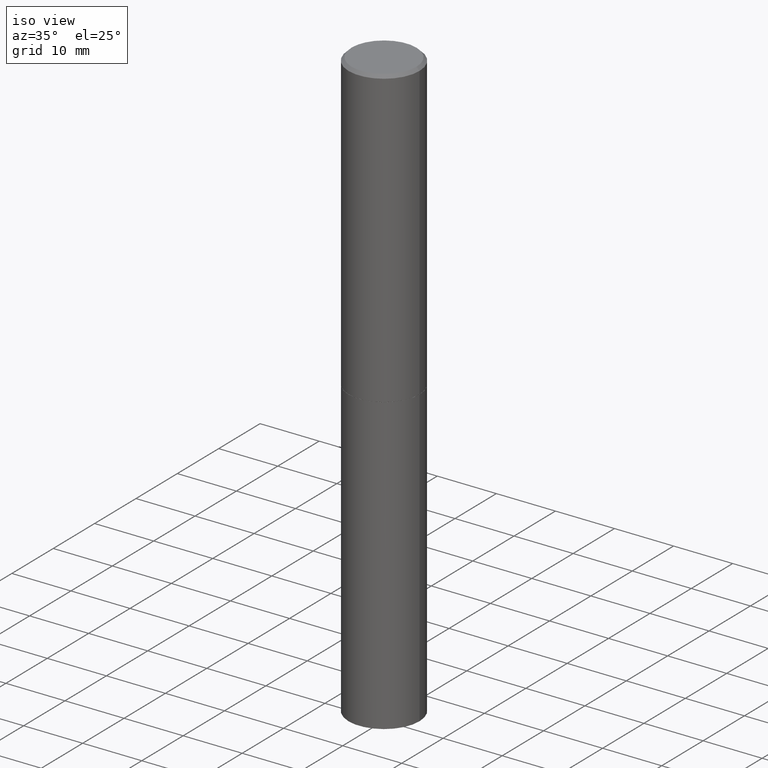
[diagram: clean part render]
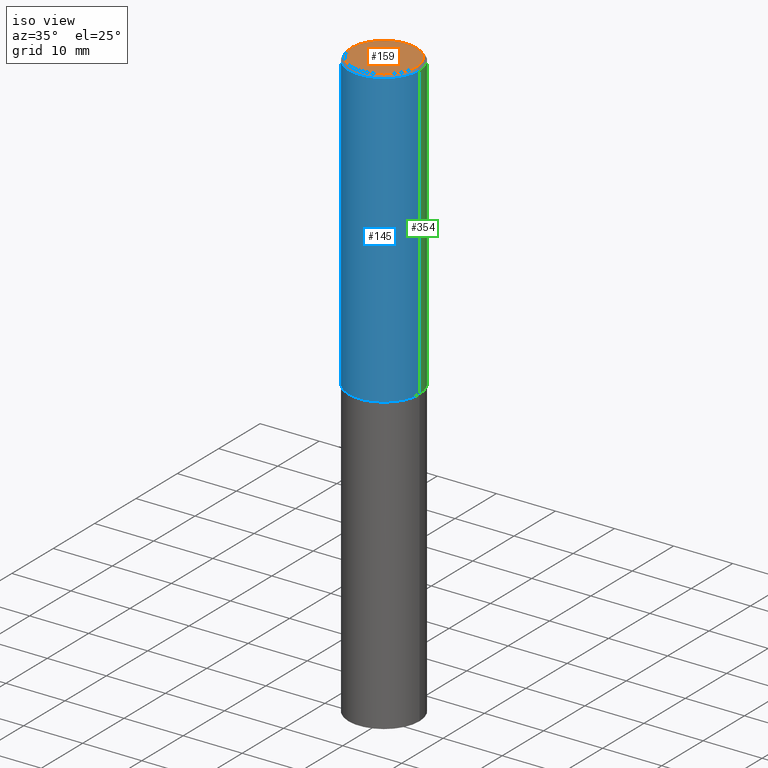
[diagram: same view with three faces highlighted in distinct colors, each labeled with its STEP entity id]
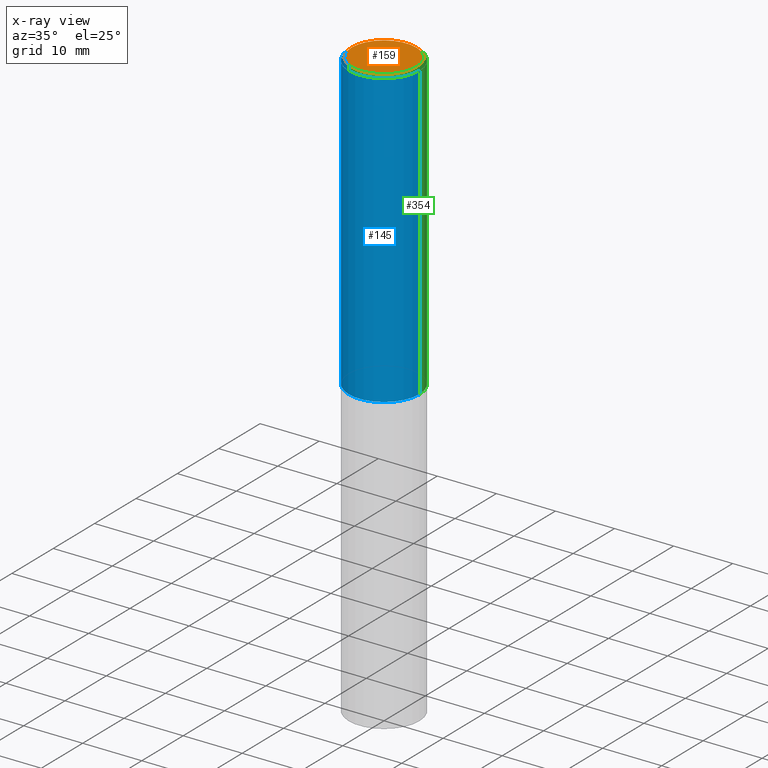
[diagram: x-ray of the same camera — body ghosted, the three highlighted faces saturated]
A machine part, iso view with three faces highlighted in distinct colors.
The next image is the same camera in x-ray (body ghosted, the three faces saturated) — at least one of them is partly hidden behind the body in this view.
Their STEP definitions:

[orange] entity #159 — the highlighted planar face has unit normal (0, -0, -1).
#8 = DIRECTION ( 'NONE',  ( -2.445468806185136597E-29, 3.491481338843145583E-15, 1.000000000000000000 ) ) ;
#49 = EDGE_CURVE ( 'NONE', #51, #303, #357, .T. ) ;
#51 = VERTEX_POINT ( 'NONE', #162 ) ;
#57 = CARTESIAN_POINT ( 'NONE',  ( -1.043851414335219820E-46, 1.490343170380447200E-32, 4.268512490100411279E-18 ) ) ;
#61 = DIRECTION ( 'NONE',  ( -2.445468806185136597E-29, 3.491481338843145583E-15, 1.000000000000000000 ) ) ;
#114 = DIRECTION ( 'NONE',  ( 1.000000000000000000, -6.982962677686267499E-15, 4.876217060660161841E-29 ) ) ;
#123 = CARTESIAN_POINT ( 'NONE',  ( -0.2161999999999997257, 1.544631344304200197E-15, 4.268512490089730842E-18 ) ) ;
#148 = CIRCLE ( 'NONE', #234, 0.2161999999999997257 ) ;
#159 = ADVANCED_FACE ( 'NONE', ( #193 ), #221, .F. ) ;
#162 = CARTESIAN_POINT ( 'NONE',  ( 0.2161999999999997257, -1.586759460484350213E-15, 4.268512490111238857E-18 ) ) ;
#192 = DIRECTION ( 'NONE',  ( 2.438088387897960049E-29, -3.491481338843145188E-15, -1.000000000000000000 ) ) ;
#193 = FACE_OUTER_BOUND ( 'NONE', #339, .T. ) ;
#218 = ORIENTED_EDGE ( 'NONE', *, *, #290, .T. ) ;
#221 = PLANE ( 'NONE',  #312 ) ;
#234 = AXIS2_PLACEMENT_3D ( 'NONE', #314, #61, #356 ) ;
#242 = ORIENTED_EDGE ( 'NONE', *, *, #49, .T. ) ;
#290 = EDGE_CURVE ( 'NONE', #303, #51, #148, .T. ) ;
#303 = VERTEX_POINT ( 'NONE', #123 ) ;
#306 = AXIS2_PLACEMENT_3D ( 'NONE', #57, #8, #114 ) ;
#312 = AXIS2_PLACEMENT_3D ( 'NONE', #345, #192, #313 ) ;
#313 = DIRECTION ( 'NONE',  ( -1.000000000000000000, 6.982962677686265922E-15, -4.876176775795935793E-29 ) ) ;
#314 = CARTESIAN_POINT ( 'NONE',  ( -1.043851414335219820E-46, 1.490343170380447200E-32, 4.268512490100411279E-18 ) ) ;
#339 = EDGE_LOOP ( 'NONE', ( #218, #242 ) ) ;
#345 = CARTESIAN_POINT ( 'NONE',  ( 1.509716530915768746E-15, 0.2161999999999997257, -7.527240092128370190E-16 ) ) ;
#356 = DIRECTION ( 'NONE',  ( 1.000000000000000000, -6.982962677686267499E-15, 4.876217060660161841E-29 ) ) ;
#357 = CIRCLE ( 'NONE', #306, 0.2161999999999997257 ) ;

[blue] entity #145 — the highlighted cylindrical surface (partial cylindrical patch) has radius 5.9995 mm, axis along (-0, 0, 1).
#3 = ORIENTED_EDGE ( 'NONE', *, *, #362, .T. ) ;
#6 = CYLINDRICAL_SURFACE ( 'NONE', #131, 0.2361999999999998545 ) ;
#24 = VERTEX_POINT ( 'NONE', #276 ) ;
#27 = AXIS2_PLACEMENT_3D ( 'NONE', #170, #255, #259 ) ;
#38 = DIRECTION ( 'NONE',  ( -2.445468806185136597E-29, 3.491481338843145583E-15, 1.000000000000000000 ) ) ;
#45 = ORIENTED_EDGE ( 'NONE', *, *, #208, .T. ) ;
#50 = VECTOR ( 'NONE', #317, 39.37007874015748143 ) ;
#77 = VERTEX_POINT ( 'NONE', #350 ) ;
#79 = ORIENTED_EDGE ( 'NONE', *, *, #169, .F. ) ;
#87 = EDGE_CURVE ( 'NONE', #160, #77, #226, .T. ) ;
#99 = LINE ( 'NONE', #271, #150 ) ;
#131 = AXIS2_PLACEMENT_3D ( 'NONE', #163, #133, #245 ) ;
#133 = DIRECTION ( 'NONE',  ( -2.445468806185136597E-29, 3.491481338843145583E-15, 1.000000000000000000 ) ) ;
#145 = ADVANCED_FACE ( 'NONE', ( #248 ), #6, .T. ) ;
#150 = VECTOR ( 'NONE', #275, 39.37007874015748143 ) ;
#151 = VERTEX_POINT ( 'NONE', #168 ) ;
#160 = VERTEX_POINT ( 'NONE', #309 ) ;
#163 = CARTESIAN_POINT ( 'NONE',  ( 0.000000000000000000, 0.000000000000000000, 0.000000000000000000 ) ) ;
#165 = CARTESIAN_POINT ( 'NONE',  ( -0.2361999999999998545, 1.678301941865355605E-15, -1.161852468318208056E-29 ) ) ;
#166 = AXIS2_PLACEMENT_3D ( 'NONE', #199, #38, #174 ) ;
#168 = CARTESIAN_POINT ( 'NONE',  ( 0.2361999999999997712, -1.690279253850497193E-15, -0.02000000000000007674 ) ) ;
#169 = EDGE_CURVE ( 'NONE', #77, #151, #257, .T. ) ;
#170 = CARTESIAN_POINT ( 'NONE',  ( 4.811459876169256232E-29, -6.869489534173888700E-15, -1.967500000000000027 ) ) ;
#174 = DIRECTION ( 'NONE',  ( 1.000000000000000000, -6.982962677686266711E-15, 0.000000000000000000 ) ) ;
#199 = CARTESIAN_POINT ( 'NONE',  ( 4.890937612370292426E-31, -6.982962677686317493E-17, -0.02000000000000007674 ) ) ;
#208 = EDGE_CURVE ( 'NONE', #160, #24, #239, .T. ) ;
#226 = LINE ( 'NONE', #165, #50 ) ;
#239 = CIRCLE ( 'NONE', #27, 0.2361999999999999933 ) ;
#241 = ORIENTED_EDGE ( 'NONE', *, *, #87, .F. ) ;
#245 = DIRECTION ( 'NONE',  ( 1.000000000000000000, -6.982962677686266711E-15, 4.876176775795935793E-29 ) ) ;
#248 = FACE_OUTER_BOUND ( 'NONE', #300, .T. ) ;
#255 = DIRECTION ( 'NONE',  ( -2.445468806185136597E-29, 3.491481338843145583E-15, 1.000000000000000000 ) ) ;
#257 = CIRCLE ( 'NONE', #166, 0.2361999999999997712 ) ;
#259 = DIRECTION ( 'NONE',  ( 1.000000000000000000, -6.982962677686265133E-15, 0.000000000000000000 ) ) ;
#271 = CARTESIAN_POINT ( 'NONE',  ( 0.2361999999999998545, -1.649375784469495145E-15, 1.151752954442999387E-29 ) ) ;
#275 = DIRECTION ( 'NONE',  ( -2.445468806185136877E-29, 3.491481338843145188E-15, 1.000000000000000000 ) ) ;
#276 = CARTESIAN_POINT ( 'NONE',  ( 0.2361999999999999933, -8.518865318643383648E-15, -1.967500000000000027 ) ) ;
#300 = EDGE_LOOP ( 'NONE', ( #241, #45, #3, #79 ) ) ;
#309 = CARTESIAN_POINT ( 'NONE',  ( -0.2362000000000000210, -1.791357638610017633E-15, -1.967500000000000027 ) ) ;
#317 = DIRECTION ( 'NONE',  ( -2.445468806185136877E-29, 3.491481338843145188E-15, 1.000000000000000000 ) ) ;
#350 = CARTESIAN_POINT ( 'NONE',  ( -0.2361999999999997712, 1.579546157692631452E-15, -0.02000000000000007674 ) ) ;
#362 = EDGE_CURVE ( 'NONE', #24, #151, #99, .T. ) ;

[green] entity #354 — the highlighted cylindrical surface (partial cylindrical patch) has radius 5.9995 mm, axis along (-0, 0, 1).
#4 = CARTESIAN_POINT ( 'NONE',  ( 4.890937612370292426E-31, -6.982962677686317493E-17, -0.02000000000000007674 ) ) ;
#19 = AXIS2_PLACEMENT_3D ( 'NONE', #21, #116, #138 ) ;
#21 = CARTESIAN_POINT ( 'NONE',  ( 4.811459876169256232E-29, -6.869489534173888700E-15, -1.967500000000000027 ) ) ;
#24 = VERTEX_POINT ( 'NONE', #276 ) ;
#25 = DIRECTION ( 'NONE',  ( -2.445468806185136597E-29, 3.491481338843145583E-15, 1.000000000000000000 ) ) ;
#36 = EDGE_CURVE ( 'NONE', #24, #160, #64, .T. ) ;
#47 = DIRECTION ( 'NONE',  ( 1.000000000000000000, -6.982962677686266711E-15, 4.876176775795935793E-29 ) ) ;
#50 = VECTOR ( 'NONE', #317, 39.37007874015748143 ) ;
#63 = FACE_OUTER_BOUND ( 'NONE', #106, .T. ) ;
#64 = CIRCLE ( 'NONE', #19, 0.2361999999999999933 ) ;
#72 = AXIS2_PLACEMENT_3D ( 'NONE', #91, #25, #47 ) ;
#77 = VERTEX_POINT ( 'NONE', #350 ) ;
#87 = EDGE_CURVE ( 'NONE', #160, #77, #226, .T. ) ;
#91 = CARTESIAN_POINT ( 'NONE',  ( 0.000000000000000000, 0.000000000000000000, 0.000000000000000000 ) ) ;
#97 = ORIENTED_EDGE ( 'NONE', *, *, #152, .F. ) ;
#99 = LINE ( 'NONE', #271, #150 ) ;
#106 = EDGE_LOOP ( 'NONE', ( #216, #238, #97, #270 ) ) ;
#110 = DIRECTION ( 'NONE',  ( 1.000000000000000000, -6.982962677686266711E-15, 0.000000000000000000 ) ) ;
#116 = DIRECTION ( 'NONE',  ( -2.445468806185136597E-29, 3.491481338843145583E-15, 1.000000000000000000 ) ) ;
#138 = DIRECTION ( 'NONE',  ( 1.000000000000000000, -6.982962677686265133E-15, 0.000000000000000000 ) ) ;
#150 = VECTOR ( 'NONE', #275, 39.37007874015748143 ) ;
#151 = VERTEX_POINT ( 'NONE', #168 ) ;
#152 = EDGE_CURVE ( 'NONE', #151, #77, #337, .T. ) ;
#160 = VERTEX_POINT ( 'NONE', #309 ) ;
#165 = CARTESIAN_POINT ( 'NONE',  ( -0.2361999999999998545, 1.678301941865355605E-15, -1.161852468318208056E-29 ) ) ;
#168 = CARTESIAN_POINT ( 'NONE',  ( 0.2361999999999997712, -1.690279253850497193E-15, -0.02000000000000007674 ) ) ;
#194 = DIRECTION ( 'NONE',  ( -2.445468806185136597E-29, 3.491481338843145583E-15, 1.000000000000000000 ) ) ;
#216 = ORIENTED_EDGE ( 'NONE', *, *, #36, .T. ) ;
#226 = LINE ( 'NONE', #165, #50 ) ;
#231 = CYLINDRICAL_SURFACE ( 'NONE', #72, 0.2361999999999998545 ) ;
#238 = ORIENTED_EDGE ( 'NONE', *, *, #87, .T. ) ;
#270 = ORIENTED_EDGE ( 'NONE', *, *, #362, .F. ) ;
#271 = CARTESIAN_POINT ( 'NONE',  ( 0.2361999999999998545, -1.649375784469495145E-15, 1.151752954442999387E-29 ) ) ;
#275 = DIRECTION ( 'NONE',  ( -2.445468806185136877E-29, 3.491481338843145188E-15, 1.000000000000000000 ) ) ;
#276 = CARTESIAN_POINT ( 'NONE',  ( 0.2361999999999999933, -8.518865318643383648E-15, -1.967500000000000027 ) ) ;
#301 = AXIS2_PLACEMENT_3D ( 'NONE', #4, #194, #110 ) ;
#309 = CARTESIAN_POINT ( 'NONE',  ( -0.2362000000000000210, -1.791357638610017633E-15, -1.967500000000000027 ) ) ;
#317 = DIRECTION ( 'NONE',  ( -2.445468806185136877E-29, 3.491481338843145188E-15, 1.000000000000000000 ) ) ;
#337 = CIRCLE ( 'NONE', #301, 0.2361999999999997712 ) ;
#350 = CARTESIAN_POINT ( 'NONE',  ( -0.2361999999999997712, 1.579546157692631452E-15, -0.02000000000000007674 ) ) ;
#354 = ADVANCED_FACE ( 'NONE', ( #63 ), #231, .T. ) ;
#362 = EDGE_CURVE ( 'NONE', #24, #151, #99, .T. ) ;